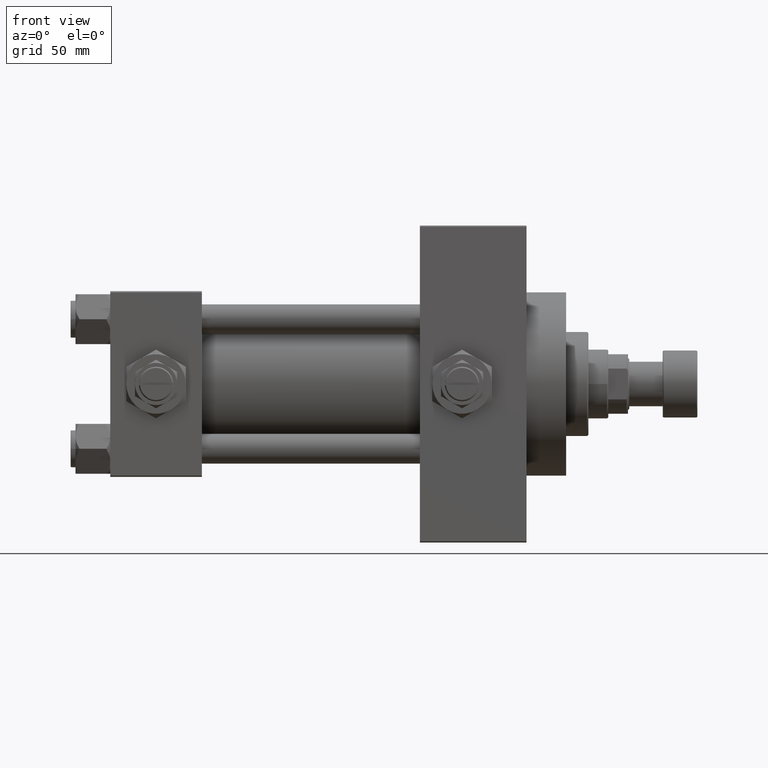
[diagram: clean part render]
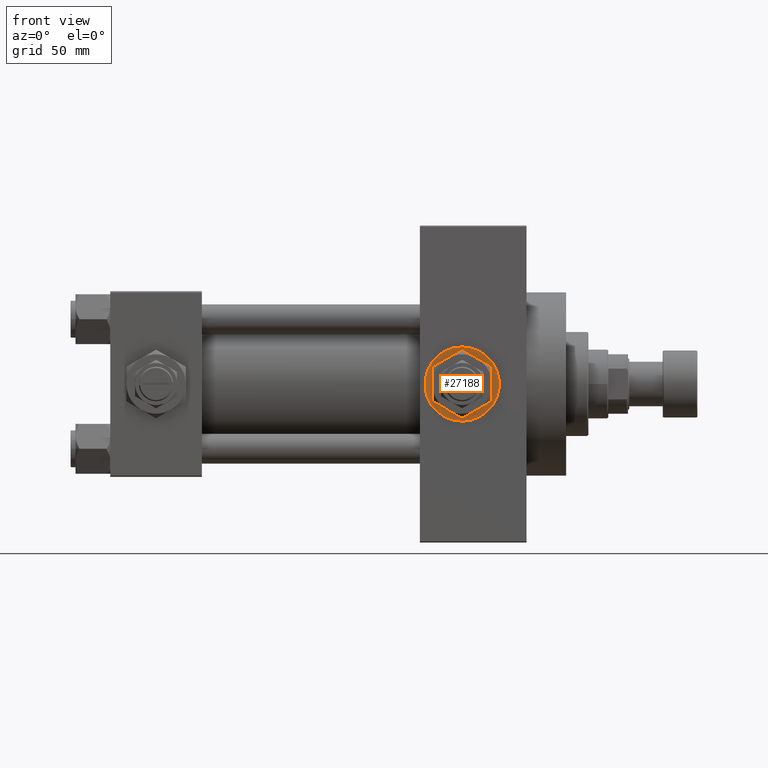
[diagram: same view with one face highlighted and labeled with its STEP entity id]
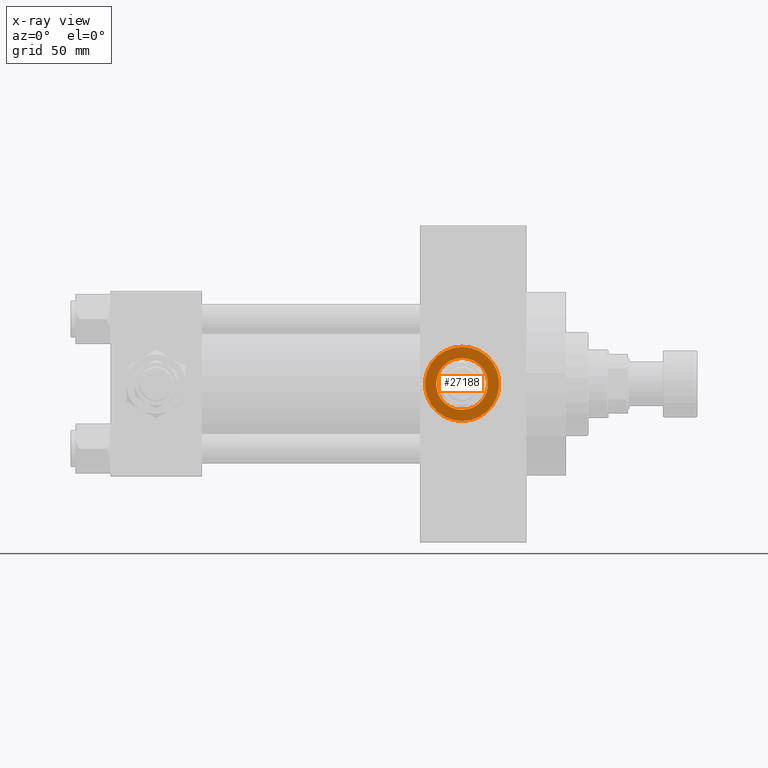
[diagram: x-ray of the same camera — body ghosted, the highlighted face saturated]
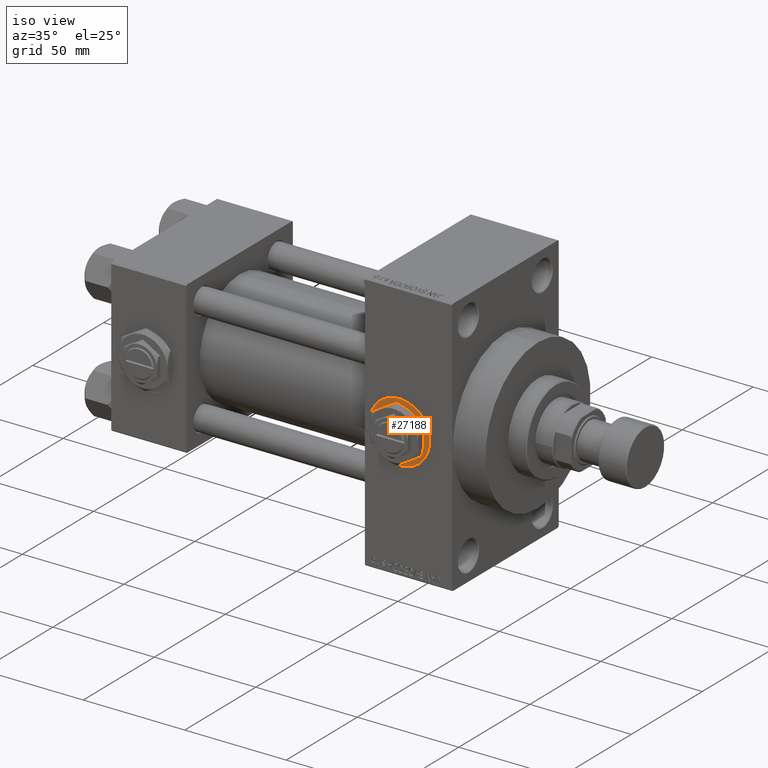
[diagram: same view with one face highlighted and labeled with its STEP entity id]
A machine part, front view. The second image highlights one B-rep face of the part: STEP entity #27188.
The next image is the same camera in x-ray: the body ghosted, the highlighted face saturated — about 0% of this face is hidden behind the body in this view.
A second angle (iso view) of the same face is appended — the face is thin or edge-on in the first view.
In plain terms, the highlighted planar face has unit normal (0, -1, -0).
Its self-contained STEP definition (entity closure, byte-faithful):
#961 = DIRECTION ( 'NONE',  ( 0.000000000000000000, -1.000000000000000000, -8.673617379884036705E-17 ) ) ;
#2674 = CARTESIAN_POINT ( 'NONE',  ( 142.0000000000000284, -37.29999999999999005, -10.47999999999998622 ) ) ;
#3552 = FACE_OUTER_BOUND ( 'NONE', #44489, .T. ) ;
#4288 = CARTESIAN_POINT ( 'NONE',  ( 142.0000000000000284, -37.29999999999999005, 1.734723475976807403E-17 ) ) ;
#4584 = ORIENTED_EDGE ( 'NONE', *, *, #28315, .F. ) ;
#5571 = DIRECTION ( 'NONE',  ( 0.000000000000000000, 0.000000000000000000, -1.000000000000000000 ) ) ;
#8074 = DIRECTION ( 'NONE',  ( 0.000000000000000000, 0.000000000000000000, -1.000000000000000000 ) ) ;
#9633 = AXIS2_PLACEMENT_3D ( 'NONE', #12542, #961, #35182 ) ;
#9662 = EDGE_CURVE ( 'NONE', #39128, #43228, #42638, .T. ) ;
#9780 = VERTEX_POINT ( 'NONE', #29718 ) ;
#12542 = CARTESIAN_POINT ( 'NONE',  ( 142.0000000000000284, -37.29999999999999005, 1.734723475976808635E-17 ) ) ;
#14951 = DIRECTION ( 'NONE',  ( 0.000000000000000000, 0.000000000000000000, -1.000000000000000000 ) ) ;
#15322 = EDGE_CURVE ( 'NONE', #43228, #39128, #17036, .T. ) ;
#15930 = CARTESIAN_POINT ( 'NONE',  ( 142.0000000000000284, -37.29999999999999005, 1.734723475976807403E-17 ) ) ;
#17036 = CIRCLE ( 'NONE', #28301, 15.00000000000002487 ) ;
#17204 = AXIS2_PLACEMENT_3D ( 'NONE', #42540, #26725, #8074 ) ;
#17382 = CARTESIAN_POINT ( 'NONE',  ( 142.0000000000000284, -37.29999999999999005, 1.734723475976807403E-17 ) ) ;
#18730 = ORIENTED_EDGE ( 'NONE', *, *, #39213, .F. ) ;
#18882 = VERTEX_POINT ( 'NONE', #2674 ) ;
#18901 = PLANE ( 'NONE',  #48945 ) ;
#21654 = DIRECTION ( 'NONE',  ( 0.000000000000000000, -1.000000000000000000, -8.673617379884036705E-17 ) ) ;
#22690 = CARTESIAN_POINT ( 'NONE',  ( 142.0000000000000284, -37.29999999999999005, 15.00000000000002487 ) ) ;
#26725 = DIRECTION ( 'NONE',  ( 0.000000000000000000, -1.000000000000000000, -8.673617379884036705E-17 ) ) ;
#27188 = ADVANCED_FACE ( 'NONE', ( #46067, #3552 ), #18901, .T. ) ;
#28301 = AXIS2_PLACEMENT_3D ( 'NONE', #15930, #31289, #14951 ) ;
#28315 = EDGE_CURVE ( 'NONE', #18882, #9780, #37757, .T. ) ;
#29718 = CARTESIAN_POINT ( 'NONE',  ( 142.0000000000000284, -37.29999999999999005, 10.47999999999998622 ) ) ;
#30481 = DIRECTION ( 'NONE',  ( 0.000000000000000000, -1.000000000000000000, -8.673617379884036705E-17 ) ) ;
#31289 = DIRECTION ( 'NONE',  ( 0.000000000000000000, -1.000000000000000000, -8.673617379884036705E-17 ) ) ;
#35182 = DIRECTION ( 'NONE',  ( 0.000000000000000000, 0.000000000000000000, -1.000000000000000000 ) ) ;
#37367 = CARTESIAN_POINT ( 'NONE',  ( 142.0000000000000284, -37.29999999999999005, -15.00000000000002487 ) ) ;
#37757 = CIRCLE ( 'NONE', #9633, 10.47999999999998622 ) ;
#39128 = VERTEX_POINT ( 'NONE', #22690 ) ;
#39213 = EDGE_CURVE ( 'NONE', #9780, #18882, #42014, .T. ) ;
#41622 = ORIENTED_EDGE ( 'NONE', *, *, #15322, .T. ) ;
#42014 = CIRCLE ( 'NONE', #17204, 10.47999999999998622 ) ;
#42540 = CARTESIAN_POINT ( 'NONE',  ( 142.0000000000000284, -37.29999999999999005, 1.734723475976808635E-17 ) ) ;
#42638 = CIRCLE ( 'NONE', #45064, 15.00000000000002487 ) ;
#43228 = VERTEX_POINT ( 'NONE', #37367 ) ;
#44489 = EDGE_LOOP ( 'NONE', ( #41622, #49067 ) ) ;
#45064 = AXIS2_PLACEMENT_3D ( 'NONE', #17382, #21654, #5571 ) ;
#45817 = DIRECTION ( 'NONE',  ( 0.000000000000000000, 8.673617379884036705E-17, -1.000000000000000000 ) ) ;
#46067 = FACE_BOUND ( 'NONE', #49391, .T. ) ;
#48945 = AXIS2_PLACEMENT_3D ( 'NONE', #4288, #30481, #45817 ) ;
#49067 = ORIENTED_EDGE ( 'NONE', *, *, #9662, .T. ) ;
#49391 = EDGE_LOOP ( 'NONE', ( #4584, #18730 ) ) ;